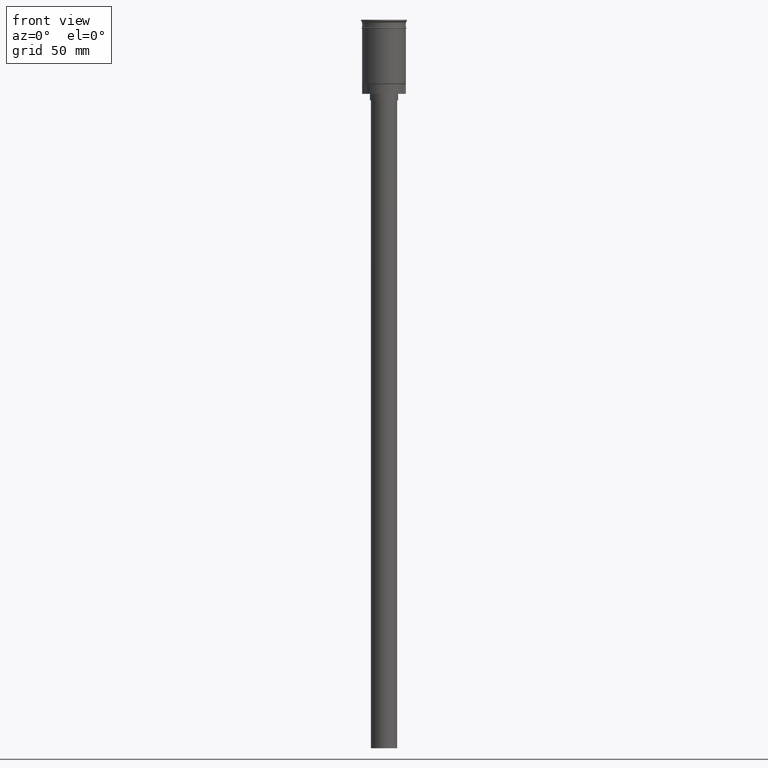
[diagram: clean part render]
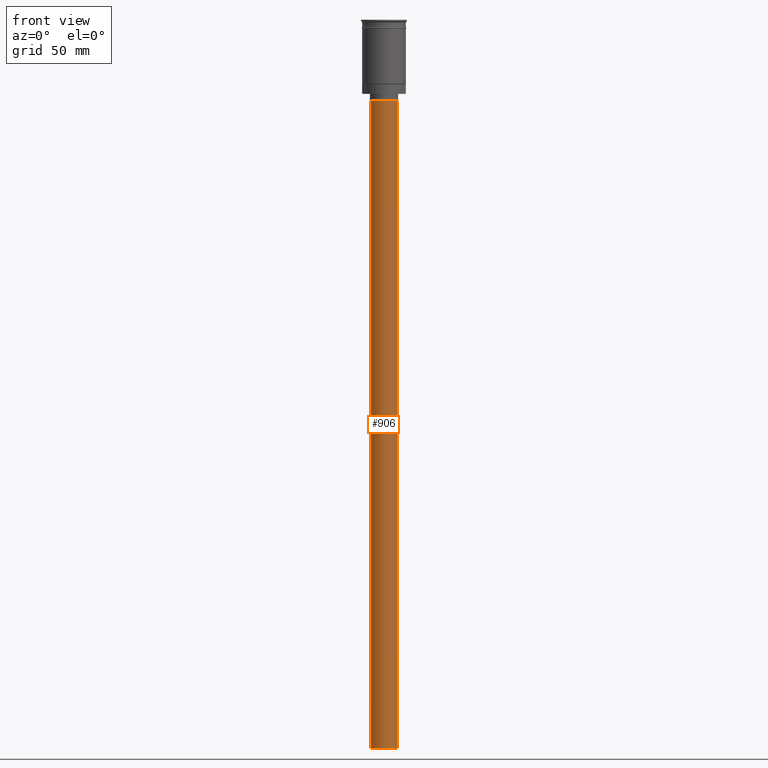
[diagram: same view with one face highlighted and labeled with its STEP entity id]
A machine part, front view. The second image highlights one B-rep face of the part: STEP entity #906.
In plain terms, the highlighted cylindrical surface (edge-blend (fillet) strip) has radius 6 mm, axis along (-0, -0, 1).
Its self-contained STEP definition (entity closure, byte-faithful):
#58 = DIRECTION ( 'NONE',  ( -0.000000000000000000, -0.000000000000000000, 1.000000000000000000 ) ) ;
#136 = DIRECTION ( 'NONE',  ( -0.000000000000000000, -0.000000000000000000, 1.000000000000000000 ) ) ;
#138 = VERTEX_POINT ( 'NONE', #1458 ) ;
#189 = DIRECTION ( 'NONE',  ( 1.000000000000000000, 0.000000000000000000, 0.000000000000000000 ) ) ;
#221 = VERTEX_POINT ( 'NONE', #435 ) ;
#231 = VERTEX_POINT ( 'NONE', #1325 ) ;
#265 = DIRECTION ( 'NONE',  ( -0.000000000000000000, -0.000000000000000000, 1.000000000000000000 ) ) ;
#318 = CARTESIAN_POINT ( 'NONE',  ( 0.000000000000000000, 0.000000000000000000, -37.00000000000000000 ) ) ;
#328 = CIRCLE ( 'NONE', #768, 6.000000000000000888 ) ;
#365 = EDGE_LOOP ( 'NONE', ( #709, #1529, #474, #924 ) ) ;
#376 = LINE ( 'NONE', #481, #636 ) ;
#407 = VECTOR ( 'NONE', #265, 1000.000000000000000 ) ;
#435 = CARTESIAN_POINT ( 'NONE',  ( 6.000000000000000888, 0.000000000000000000, -37.00000000000000000 ) ) ;
#438 = DIRECTION ( 'NONE',  ( 0.000000000000000000, 0.000000000000000000, -1.000000000000000000 ) ) ;
#474 = ORIENTED_EDGE ( 'NONE', *, *, #1198, .T. ) ;
#481 = CARTESIAN_POINT ( 'NONE',  ( -6.000000000000000888, 7.347880794884120722E-16, -333.9999999999999432 ) ) ;
#530 = DIRECTION ( 'NONE',  ( 0.000000000000000000, 0.000000000000000000, -1.000000000000000000 ) ) ;
#533 = AXIS2_PLACEMENT_3D ( 'NONE', #1530, #58, #189 ) ;
#550 = CARTESIAN_POINT ( 'NONE',  ( 0.000000000000000000, 0.000000000000000000, -333.9999999999999432 ) ) ;
#636 = VECTOR ( 'NONE', #136, 1000.000000000000000 ) ;
#709 = ORIENTED_EDGE ( 'NONE', *, *, #1094, .F. ) ;
#768 = AXIS2_PLACEMENT_3D ( 'NONE', #550, #530, #1048 ) ;
#874 = EDGE_CURVE ( 'NONE', #1364, #138, #328, .T. ) ;
#890 = CARTESIAN_POINT ( 'NONE',  ( 6.000000000000000888, 0.000000000000000000, -333.9999999999999432 ) ) ;
#903 = AXIS2_PLACEMENT_3D ( 'NONE', #318, #438, #1350 ) ;
#906 = ADVANCED_FACE ( 'NONE', ( #1397 ), #1021, .T. ) ;
#924 = ORIENTED_EDGE ( 'NONE', *, *, #1022, .T. ) ;
#1021 = CYLINDRICAL_SURFACE ( 'NONE', #533, 6.000000000000000888 ) ;
#1022 = EDGE_CURVE ( 'NONE', #221, #231, #1190, .T. ) ;
#1048 = DIRECTION ( 'NONE',  ( -1.000000000000000000, 0.000000000000000000, 0.000000000000000000 ) ) ;
#1094 = EDGE_CURVE ( 'NONE', #138, #231, #376, .T. ) ;
#1180 = CARTESIAN_POINT ( 'NONE',  ( 6.000000000000000888, 0.000000000000000000, -333.9999999999999432 ) ) ;
#1190 = CIRCLE ( 'NONE', #903, 6.000000000000000888 ) ;
#1198 = EDGE_CURVE ( 'NONE', #1364, #221, #1394, .T. ) ;
#1325 = CARTESIAN_POINT ( 'NONE',  ( -6.000000000000000888, 7.347880794884120722E-16, -37.00000000000000000 ) ) ;
#1350 = DIRECTION ( 'NONE',  ( -1.000000000000000000, 0.000000000000000000, 0.000000000000000000 ) ) ;
#1364 = VERTEX_POINT ( 'NONE', #1180 ) ;
#1394 = LINE ( 'NONE', #890, #407 ) ;
#1397 = FACE_OUTER_BOUND ( 'NONE', #365, .T. ) ;
#1458 = CARTESIAN_POINT ( 'NONE',  ( -6.000000000000000888, 7.347880794884120722E-16, -333.9999999999999432 ) ) ;
#1529 = ORIENTED_EDGE ( 'NONE', *, *, #874, .F. ) ;
#1530 = CARTESIAN_POINT ( 'NONE',  ( 0.000000000000000000, 0.000000000000000000, -333.9999999999999432 ) ) ;